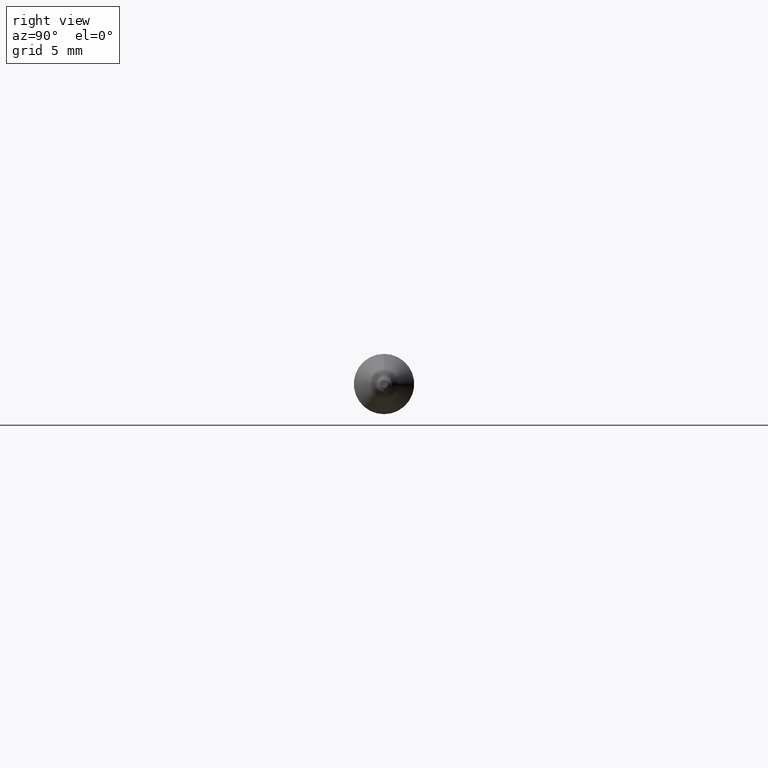
[diagram: clean part render]
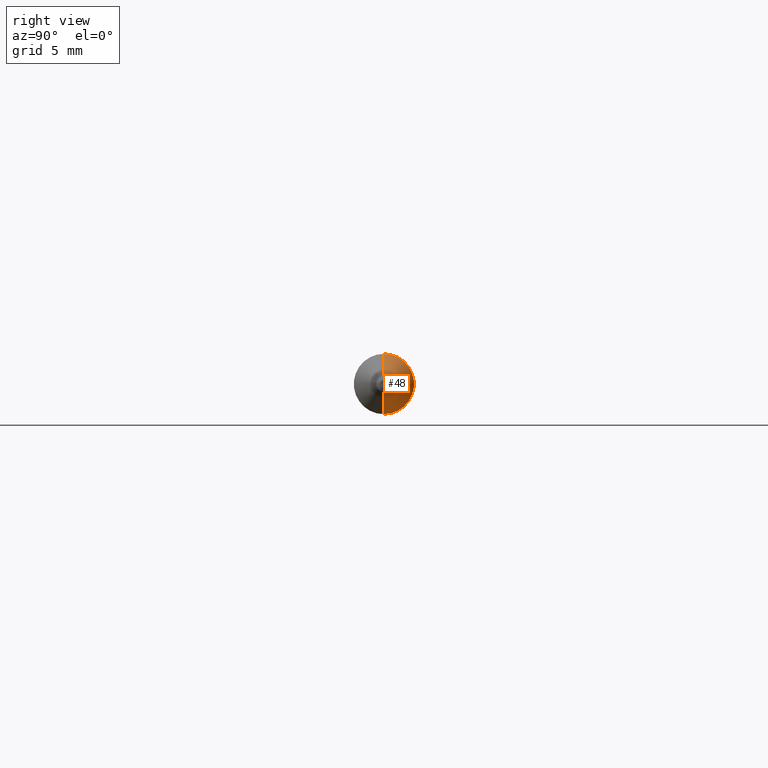
[diagram: same view with one face highlighted and labeled with its STEP entity id]
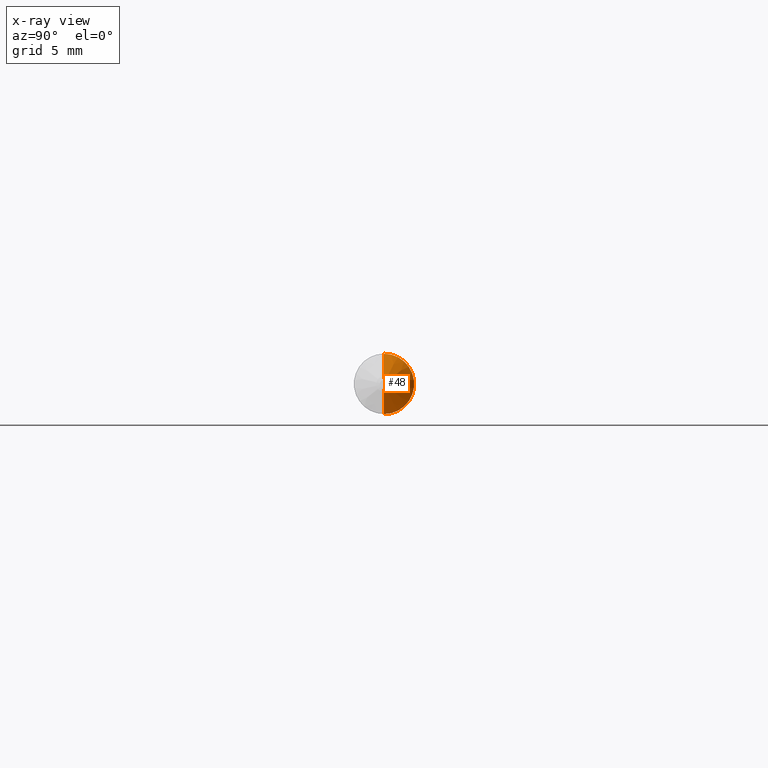
[diagram: x-ray of the same camera — body ghosted, the highlighted face saturated]
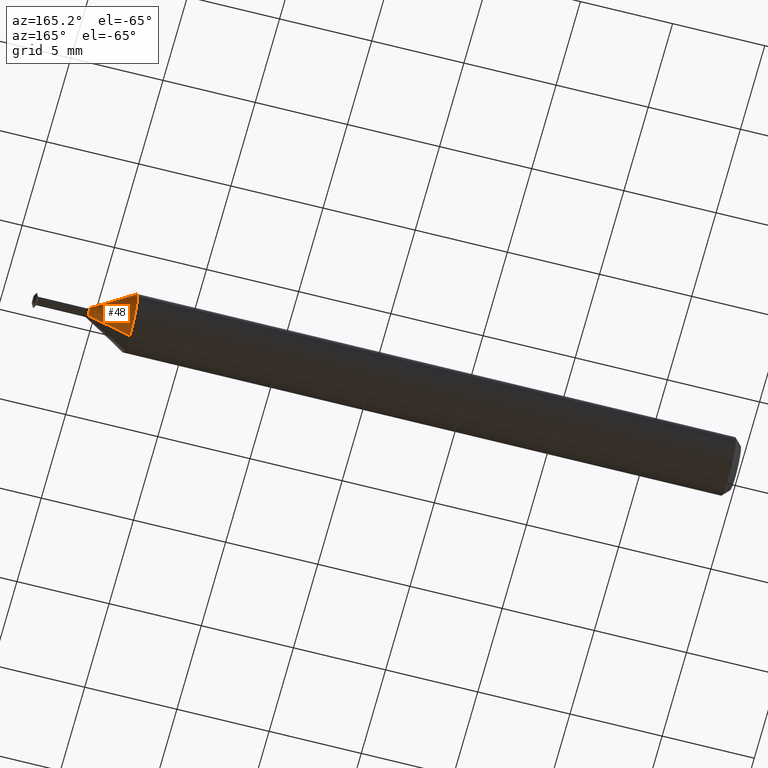
[diagram: same view with one face highlighted and labeled with its STEP entity id]
A machine part, right view. The second image highlights one B-rep face of the part: STEP entity #48.
The next image is the same camera in x-ray: the body ghosted, the highlighted face saturated — about 0% of this face is hidden behind the body in this view.
A second angle (auxiliary view) of the same face is appended — the face is thin or edge-on in the first view.
In plain terms, the highlighted conical surface has half-angle 30 deg.
Its self-contained STEP definition (entity closure, byte-faithful):
#1 = CARTESIAN_POINT ( 'NONE',  ( 1.292941102884447746, 0.0000000000000000000, 0.06235000000000000958 ) ) ;
#24 = ORIENTED_EDGE ( 'NONE', *, *, #270, .T. ) ;
#31 = VERTEX_POINT ( 'NONE', #43 ) ;
#36 = EDGE_CURVE ( 'NONE', #284, #197, #167, .T. ) ;
#38 = DIRECTION ( 'NONE',  ( -0.8660254037844383745, 6.123233995736770966E-17, -0.5000000000000004441 ) ) ;
#43 = CARTESIAN_POINT ( 'NONE',  ( 1.381865251354714053, 0.0000000000000000000, 0.01100961894323346582 ) ) ;
#48 = ADVANCED_FACE ( 'NONE', ( #495 ), #214, .T. ) ;
#78 = EDGE_LOOP ( 'NONE', ( #290, #24, #303, #239 ) ) ;
#118 = VECTOR ( 'NONE', #454, 39.37007874015748143 ) ;
#154 = LINE ( 'NONE', #289, #458 ) ;
#164 = EDGE_CURVE ( 'NONE', #31, #408, #420, .T. ) ;
#167 = CIRCLE ( 'NONE', #433, 0.06235000000000000264 ) ;
#175 = CARTESIAN_POINT ( 'NONE',  ( 1.381865251354714053, 0.0000000000000000000, 0.0000000000000000000 ) ) ;
#177 = DIRECTION ( 'NONE',  ( 0.0000000000000000000, 0.0000000000000000000, 1.000000000000000000 ) ) ;
#197 = VERTEX_POINT ( 'NONE', #442 ) ;
#214 = CONICAL_SURFACE ( 'NONE', #483, 0.01100961894323346235, 0.5235987755982993708 ) ;
#228 = LINE ( 'NONE', #381, #118 ) ;
#239 = ORIENTED_EDGE ( 'NONE', *, *, #499, .F. ) ;
#262 = DIRECTION ( 'NONE',  ( -1.000000000000000000, -0.0000000000000000000, -0.0000000000000000000 ) ) ;
#266 = DIRECTION ( 'NONE',  ( 0.0000000000000000000, 0.0000000000000000000, 1.000000000000000000 ) ) ;
#270 = EDGE_CURVE ( 'NONE', #408, #197, #154, .T. ) ;
#284 = VERTEX_POINT ( 'NONE', #1 ) ;
#289 = CARTESIAN_POINT ( 'NONE',  ( 1.381865251354714053, 1.348289459866292480E-18, -0.01100961894323346235 ) ) ;
#290 = ORIENTED_EDGE ( 'NONE', *, *, #164, .T. ) ;
#303 = ORIENTED_EDGE ( 'NONE', *, *, #36, .F. ) ;
#304 = DIRECTION ( 'NONE',  ( -1.000000000000000000, -0.0000000000000000000, -0.0000000000000000000 ) ) ;
#305 = AXIS2_PLACEMENT_3D ( 'NONE', #175, #262, #330 ) ;
#330 = DIRECTION ( 'NONE',  ( 0.0000000000000000000, 0.0000000000000000000, 1.000000000000000000 ) ) ;
#372 = CARTESIAN_POINT ( 'NONE',  ( 1.381865251354714053, 0.0000000000000000000, 0.0000000000000000000 ) ) ;
#381 = CARTESIAN_POINT ( 'NONE',  ( 1.381865251354714053, 0.0000000000000000000, 0.01100961894323346235 ) ) ;
#385 = CARTESIAN_POINT ( 'NONE',  ( 1.381865251354714053, 1.348289459866293251E-18, -0.01100961894323346582 ) ) ;
#408 = VERTEX_POINT ( 'NONE', #385 ) ;
#420 = CIRCLE ( 'NONE', #305, 0.01100961894323346235 ) ;
#433 = AXIS2_PLACEMENT_3D ( 'NONE', #481, #445, #266 ) ;
#442 = CARTESIAN_POINT ( 'NONE',  ( 1.292941102884447746, 7.635672792683748212E-18, -0.06235000000000000958 ) ) ;
#445 = DIRECTION ( 'NONE',  ( -1.000000000000000000, -0.0000000000000000000, -0.0000000000000000000 ) ) ;
#454 = DIRECTION ( 'NONE',  ( -0.8660254037844383745, 0.0000000000000000000, 0.5000000000000004441 ) ) ;
#458 = VECTOR ( 'NONE', #38, 39.37007874015748143 ) ;
#481 = CARTESIAN_POINT ( 'NONE',  ( 1.292941102884447746, 0.0000000000000000000, 0.0000000000000000000 ) ) ;
#483 = AXIS2_PLACEMENT_3D ( 'NONE', #372, #304, #177 ) ;
#495 = FACE_OUTER_BOUND ( 'NONE', #78, .T. ) ;
#499 = EDGE_CURVE ( 'NONE', #31, #284, #228, .T. ) ;